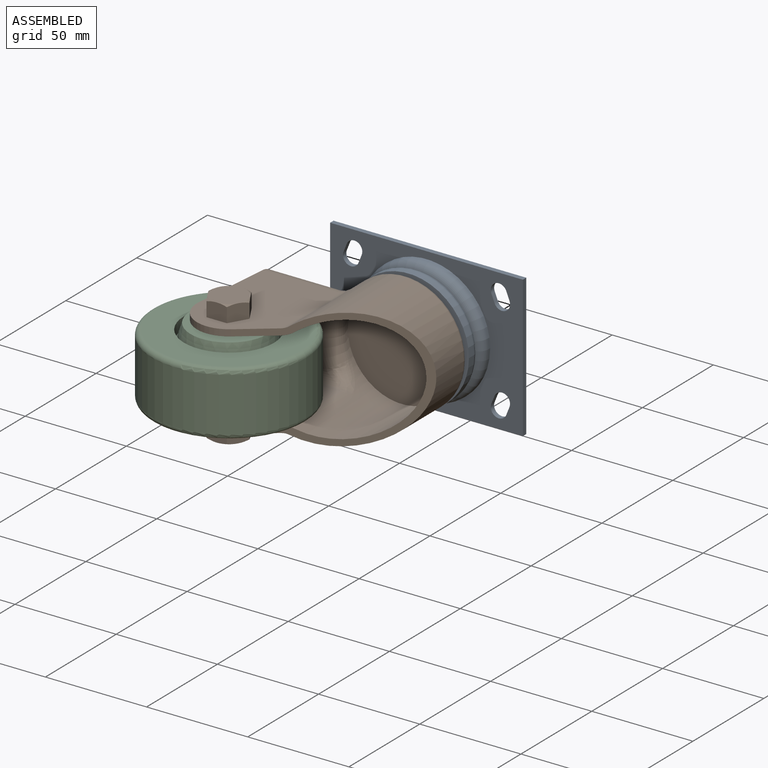
[diagram: assembled view]
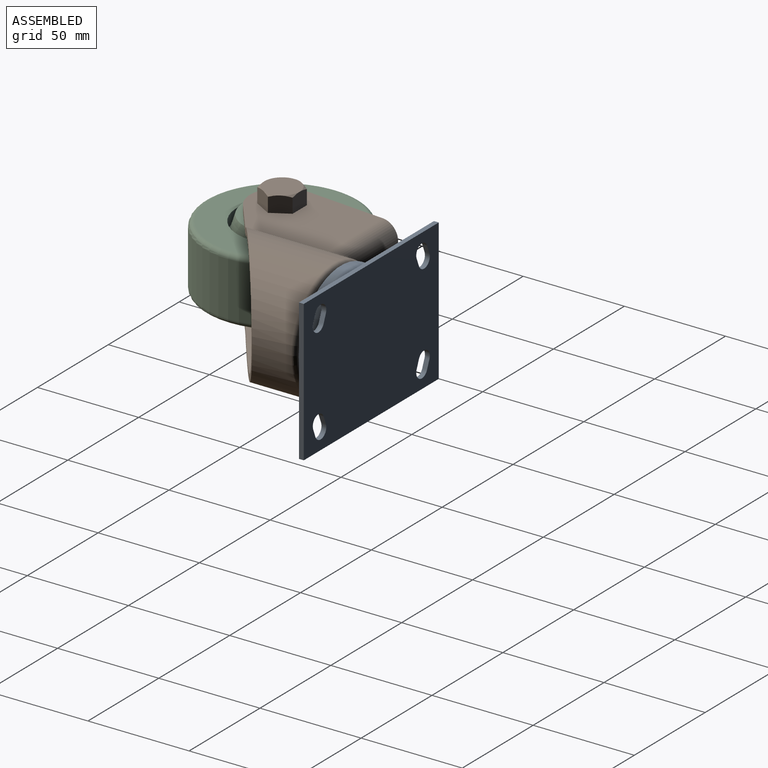
[diagram: assembled view, second angle]
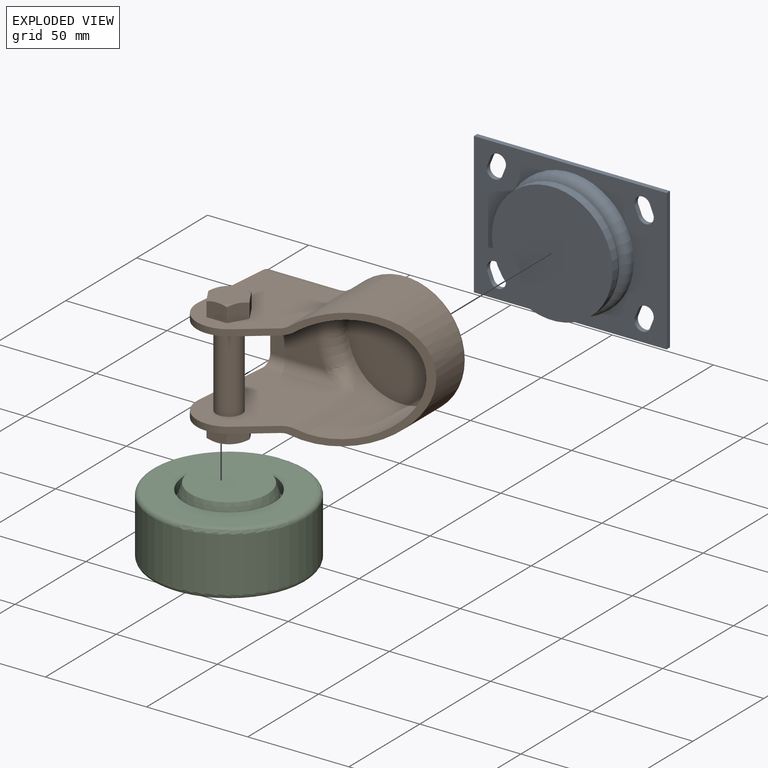
[diagram: exploded view]
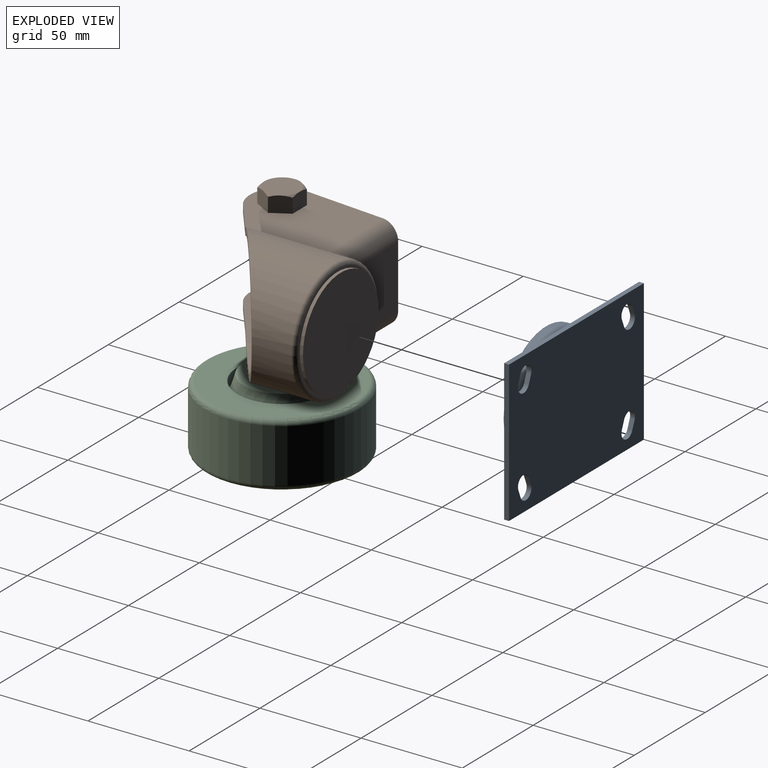
[diagram: exploded view, second angle]
ASSEMBLY  parts=3 mates=2
PART A: 28 faces, bbox 95.3x15.1x69.9 mm
  f0: plane 95.25x69.85mm, normal (0,1,0), area 6319.6mm2, adj f1,f2,f3,f4,f5,f6,f7,f8
  f1: cylinder r=3.97mm len=7.65mm, axis (0,1,0), area 29.7mm2, adj f0,f2,f4,f21
  f2: plane 3.97x2.38mm, normal (-0.93,0,-0.37), area 10.2mm2, adj f0,f1,f3,f21
  f3: cylinder r=3.97mm len=7.65mm, axis (0,1,0), area 29.7mm2, adj f0,f2,f4,f21
  f4: plane 3.97x2.38mm, normal (0.93,0,0.37), area 10.2mm2, adj f0,f1,f3,f21
  f5: cylinder r=3.97mm len=7.65mm, axis (0,1,0), area 29.7mm2, adj f0,f6,f8,f21
  f6: plane 3.97x2.38mm, normal (-0.93,0,0.37), area 10.2mm2, adj f0,f5,f7,f21
  f7: cylinder r=3.97mm len=7.65mm, axis (0,1,0), area 29.7mm2, adj f0,f6,f8,f21
  f8: plane 3.97x2.38mm, normal (0.93,0,-0.37), area 10.2mm2, adj f0,f5,f7,f21
  f9: plane 3.97x2.38mm, normal (-0.93,0,-0.37), area 10.2mm2, adj f0,f10,f12,f21
  f10: cylinder r=3.97mm len=7.65mm, axis (0,1,0), area 29.7mm2, adj f0,f9,f11,f21
  f11: plane 3.97x2.38mm, normal (0.93,0,0.37), area 10.2mm2, adj f0,f10,f12,f21
  f12: cylinder r=3.97mm len=7.65mm, axis (0,1,0), area 29.7mm2, adj f0,f9,f11,f21
  f13: plane 3.97x2.38mm, normal (-0.93,0,0.37), area 10.2mm2, adj f0,f14,f16,f21
  f14: cylinder r=3.97mm len=7.65mm, axis (0,1,0), area 29.7mm2, adj f0,f13,f15,f21
  f15: plane 3.97x2.38mm, normal (0.93,0,-0.37), area 10.2mm2, adj f0,f14,f16,f21
  f16: cylinder r=3.97mm len=7.65mm, axis (0,1,0), area 29.7mm2, adj f0,f13,f15,f21
  f17: plane 95.25x2.38mm, normal (0,0,-1), area 226.8mm2, adj f0,f18,f20,f21
  f18: plane 69.85x2.38mm, normal (-1,0,0), area 166.3mm2, adj f0,f17,f19,f21
  f19: plane 95.25x2.38mm, normal (0,0,1), area 226.8mm2, adj f0,f18,f20,f21
  f20: plane 69.85x2.38mm, normal (1,0,0), area 166.3mm2, adj f0,f17,f19,f21
  f21: plane 95.25x69.85mm, normal (0,-1,0), area 3215.7mm2, adj f1,f2,f3,f4,f5,f6,f7,f8
  f22: cylinder r=31.43mm len=62.87mm, axis (0,1,0), area 250.8mm2, adj f21,f23
  f23: torus R=26.67mm, axis (0,1,0), area 1396.1mm2, adj f22,f24
  f24: torus R=26.67mm, axis (0,1,0), area 899.1mm2, adj f23,f25
  f25: cylinder r=29.84mm len=59.69mm, axis (0,1,0), area 654.9mm2, adj f24,f26
  f26: plane 59.69x59.69mm, normal (0,-1,0), area 563.7mm2, adj f25,f27
  f27: plane 53.34x53.34mm, normal (0,-1,0), area 2234.6mm2, adj f26
PART B: 58 faces, bbox 107.8x90.7x80.8 mm
  f0: cylinder r=26.67mm len=53.34mm, axis (0,1,0), area 266mm2, adj f9,f57
  f1: cone r=8.73mm half-angle=60deg, axis (0,0,1), area 7.5mm2, adj f45,f50,f56
  f2: cone r=8.73mm half-angle=60deg, axis (0,0,-1), area 7.5mm2, adj f33,f38,f44
  f3: cylinder r=6.35mm len=40.39mm, axis (0,0,-1), area 1611.3mm2, adj f12,f13
  f4: cylinder r=26.67mm len=53.34mm, axis (0,1,0), area 4598.8mm2, adj f23,f24,f25,f26,f27,f28,f30
  f5: cylinder r=15.88mm len=25.54mm, axis (0,0,-1), area 116.6mm2, adj f11,f13,f22,f23
  f6: cylinder r=15.88mm len=25.54mm, axis (0,0,-1), area 116.6mm2, adj f10,f12,f22,f23
  f7: torus R=27.81mm, axis (0,-1,0), area 583.7mm2, adj f8,f9
  f8: cylinder r=29.84mm len=59.69mm, axis (0,1,0), area 5294.1mm2, adj f7,f17,f18,f19,f20,f21,f23
  f9: plane 55.63x55.63mm, normal (0,1,0), area 195.6mm2, adj f0,f7
  f10: plane 57.15x41.61mm, normal (0,0,-1), area 1826.1mm2, adj f6,f16,f17,f22,f23,f45,f46,f47
  f11: plane 57.15x41.61mm, normal (0,0,1), area 1826.1mm2, adj f5,f15,f18,f22,f23,f33,f34,f35
  f12: plane 57.15x41.61mm, normal (0,0,1), area 1963.5mm2, adj f3,f6,f22,f23,f28,f29
  f13: plane 57.15x41.61mm, normal (0,0,-1), area 1963.5mm2, adj f3,f5,f22,f23,f30,f31
  f14: plane 30.86x26.55mm, normal (0,1,0), area 743.9mm2, adj f15,f16,f20,f22
  f15: cylinder r=7.94mm len=38.06mm, axis (1,0,0), area 402.8mm2, adj f11,f14,f21,f22
  f16: cylinder r=7.94mm len=38.06mm, axis (-1,0,0), area 402.8mm2, adj f10,f14,f19,f22
  f17: cylinder r=4.76mm len=41.54mm, axis (0,1,0), area 119.8mm2, adj f8,f10,f19,f23
  f18: cylinder r=4.76mm len=41.54mm, axis (0,1,0), area 119.8mm2, adj f8,f11,f21,f23
  f19: bspline ~13.59x12.7mm, area 91.9mm2, adj f8,f16,f17,f20
  f20: torus R=34.61mm, axis (0,-1,0), area 218.3mm2, adj f8,f14,f19,f21
  f21: bspline ~13.59x12.7mm, area 91.9mm2, adj f8,f15,f18,f20
  f22: plane 48.19x47.09mm, normal (-1,0.09,0), area 416.2mm2, adj f5,f6,f10,f11,f12,f13,f14,f15
  f23: plane 80.76x79.76mm, normal (0.61,-0.79,0), area 656.1mm2, adj f4,f5,f6,f8,f10,f11,f12,f13
  f24: plane 53.34x53.34mm, normal (0,-1,0), area 2234.6mm2, adj f4
  f25: torus R=34.61mm, axis (0,-1,0), area 340.6mm2, adj f4,f26,f27,f32
  f26: bspline ~15.44x12.7mm, area 125.2mm2, adj f4,f25,f28,f29
  f27: bspline ~15.44x12.7mm, area 125.2mm2, adj f4,f25,f30,f31
  f28: cylinder r=7.94mm len=41.54mm, axis (0,1,0), area 196.2mm2, adj f4,f12,f23,f26
  f29: cylinder r=4.76mm len=38.06mm, axis (-1,0,0), area 242.7mm2, adj f12,f22,f26,f32
  f30: cylinder r=7.94mm len=41.54mm, axis (0,1,0), area 196.2mm2, adj f4,f13,f23,f27
  f31: cylinder r=4.76mm len=38.06mm, axis (1,0,0), area 242.7mm2, adj f13,f22,f27,f32
  f32: plane 30.86x26.83mm, normal (0,-1,0), area 752.4mm2, adj f22,f25,f29,f31
  f33: plane 9.56x8.77mm, normal (0.87,0.5,0), area 77.3mm2, adj f2,f11,f34,f38,f43
  f34: plane 10.91x8.77mm, normal (0,1,0), area 77.3mm2, adj f11,f33,f35,f42,f43
  f35: plane 9.56x8.77mm, normal (-0.87,0.5,0), area 77.3mm2, adj f11,f34,f36,f41,f42
  f36: plane 9.56x8.77mm, normal (-0.87,-0.5,0), area 77.3mm2, adj f11,f35,f37,f40,f41
  f37: plane 10.91x8.77mm, normal (0,-1,0), area 77.3mm2, adj f11,f36,f38,f39,f40
  f38: plane 9.56x8.77mm, normal (0.87,-0.5,0), area 77.3mm2, adj f2,f11,f33,f37,f39
  f39: cone r=8.73mm half-angle=60deg, axis (0,0,-1), area 7.5mm2, adj f37,f38,f44
  f40: cone r=8.73mm half-angle=60deg, axis (0,0,-1), area 7.5mm2, adj f36,f37,f44
  f41: cone r=8.73mm half-angle=60deg, axis (0,0,-1), area 7.5mm2, adj f35,f36,f44
  f42: cone r=8.73mm half-angle=60deg, axis (0,0,-1), area 7.5mm2, adj f34,f35,f44
  f43: cone r=8.73mm half-angle=60deg, axis (0,0,-1), area 7.5mm2, adj f33,f34,f44
  f44: plane 17.46x17.46mm, normal (0,0,1), area 239.5mm2, adj f2,f39,f40,f41,f42,f43
  f45: plane 9.56x8.77mm, normal (0.87,0.5,0), area 77.3mm2, adj f1,f10,f46,f50,f55
  f46: plane 10.91x8.77mm, normal (0,1,0), area 77.3mm2, adj f10,f45,f47,f54,f55
  f47: plane 9.56x8.77mm, normal (-0.87,0.5,0), area 77.3mm2, adj f10,f46,f48,f53,f54
  f48: plane 9.56x8.77mm, normal (-0.87,-0.5,0), area 77.3mm2, adj f10,f47,f49,f52,f53
  f49: plane 10.91x8.77mm, normal (0,-1,0), area 77.3mm2, adj f10,f48,f50,f51,f52
  f50: plane 9.56x8.77mm, normal (0.87,-0.5,0), area 77.3mm2, adj f1,f10,f45,f49,f51
  f51: cone r=8.73mm half-angle=60deg, axis (0,0,1), area 7.5mm2, adj f49,f50,f56
  f52: cone r=8.73mm half-angle=60deg, axis (0,0,1), area 7.5mm2, adj f48,f49,f56
  f53: cone r=8.73mm half-angle=60deg, axis (0,0,1), area 7.5mm2, adj f47,f48,f56
  f54: cone r=8.73mm half-angle=60deg, axis (0,0,1), area 7.5mm2, adj f46,f47,f56
  f55: cone r=8.73mm half-angle=60deg, axis (0,0,1), area 7.5mm2, adj f45,f46,f56
  f56: plane 17.46x17.46mm, normal (0,0,-1), area 239.5mm2, adj f1,f51,f52,f53,f54,f55
  f57: plane 53.34x53.34mm, normal (0,1,0), area 2234.6mm2, adj f0
PART C: 15 faces, bbox 82.5x82.5x37.8 mm
  f0: cone r=19.05mm half-angle=17.2deg, axis (0,0,1), area 697.3mm2, adj f1,f14
  f1: cylinder r=20.7mm len=41.4mm, axis (0,0,1), area 413mm2, adj f0,f13
  f2: cylinder r=22.23mm len=44.45mm, axis (0,0,1), area 762.6mm2, adj f12,f13
  f3: torus R=35.56mm, axis (0,0,1), area 932mm2, adj f4,f12
  f4: cylinder r=38.1mm len=76.2mm, axis (0,0,1), area 6384.5mm2, adj f3,f5
  f5: torus R=35.56mm, axis (0,0,1), area 932mm2, adj f4,f11
  f6: cylinder r=22.23mm len=44.45mm, axis (0,0,1), area 762.6mm2, adj f10,f11
  f7: cylinder r=20.7mm len=41.4mm, axis (0,0,1), area 413mm2, adj f8,f10
  f8: cone r=20.7mm half-angle=17.2deg, axis (0,0,-1), area 697.3mm2, adj f7,f9
  f9: plane 38.1x38.1mm, normal (0,0,1), area 1140.1mm2, adj f8
  f10: plane 44.45x44.45mm, normal (0,0,1), area 205.5mm2, adj f6,f7
  f11: plane 71.12x71.12mm, normal (0,0,1), area 2420.8mm2, adj f5,f6
  f12: plane 71.12x71.12mm, normal (0,0,-1), area 2420.8mm2, adj f2,f3
  f13: plane 44.45x44.45mm, normal (0,0,-1), area 205.5mm2, adj f1,f2
  f14: plane 38.1x38.1mm, normal (0,0,-1), area 1140.1mm2, adj f0
PLACE A at identity fixed
PLACE B at identity
PLACE C at identity
MATE revolute A.f22 <-> B.f4  axis (0,-1,0) through (0,-15.08,0)mm
MATE revolute C.f0 <-> B.f1  axis (0,0,1) through (-45.9,-76.2,18.92)mm
